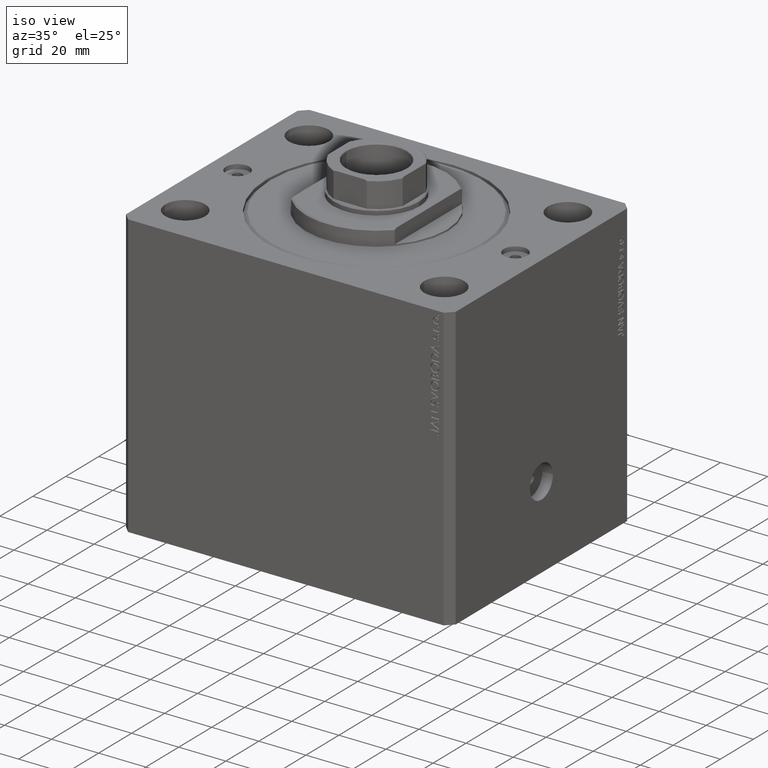
[diagram: clean part render]
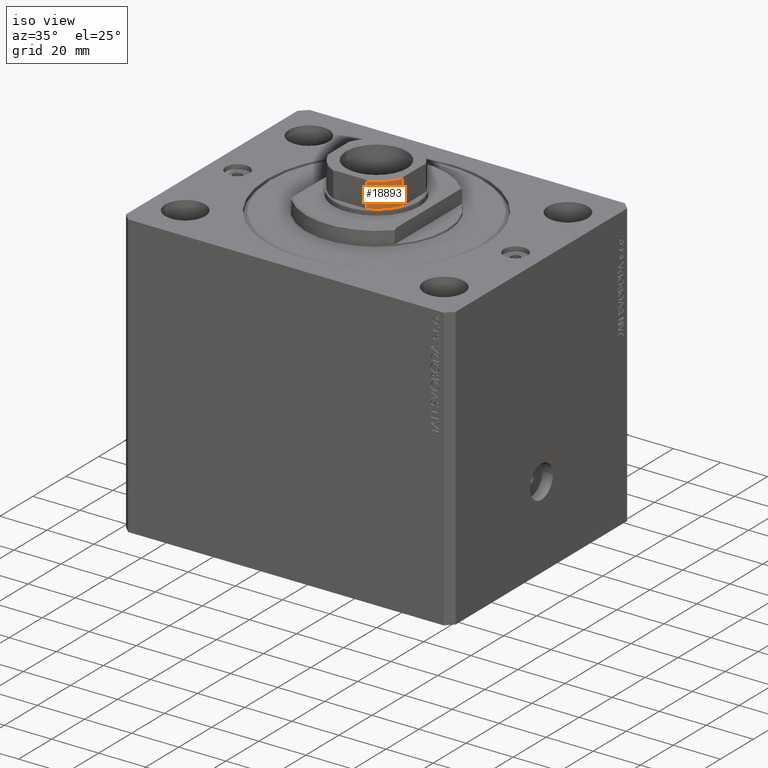
[diagram: same view with one face highlighted and labeled with its STEP entity id]
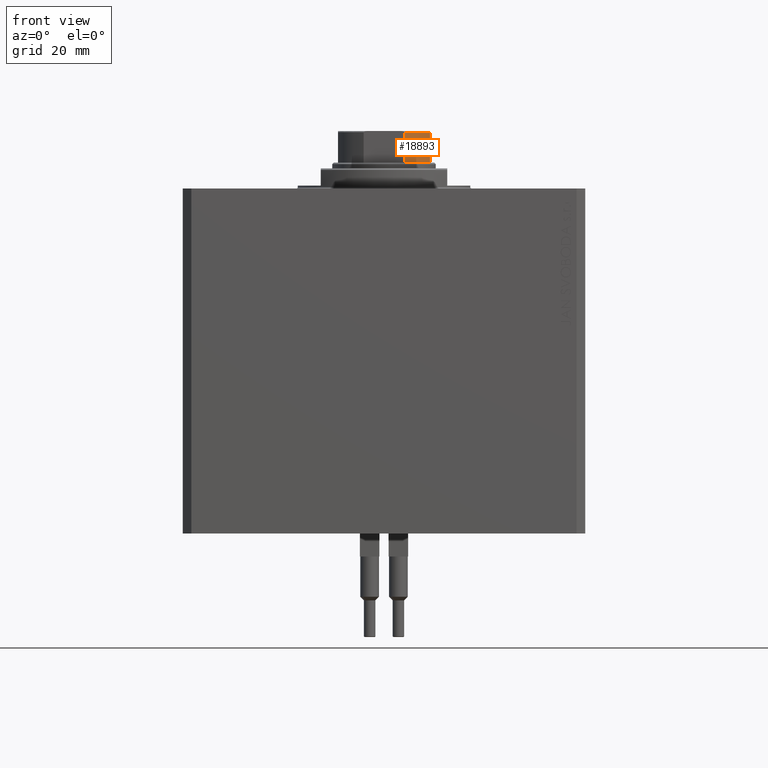
[diagram: same view with one face highlighted and labeled with its STEP entity id]
A machine part, iso view. The second image highlights one B-rep face of the part: STEP entity #18893.
A second angle (front view) of the same face is appended — the face is thin or edge-on in the first view.
In plain terms, the highlighted cylindrical surface (partial cylindrical patch) has radius 17.5 mm, axis along (0, 0, 1).
Its self-contained STEP definition (entity closure, byte-faithful):
#415 = CARTESIAN_POINT ( 'NONE',  ( 7.088723439378916247, -16.00000000000000000, -0.001000000000001000089 ) ) ;
#722 = FACE_OUTER_BOUND ( 'NONE', #20437, .T. ) ;
#832 = CIRCLE ( 'NONE', #19453, 17.50000000000001421 ) ;
#1024 = CIRCLE ( 'NONE', #18874, 17.50000000000000000 ) ;
#1625 = EDGE_CURVE ( 'NONE', #5540, #33723, #9014, .T. ) ;
#5148 = CARTESIAN_POINT ( 'NONE',  ( 0.000000000000000000, 0.000000000000000000, 114.5000000000000000 ) ) ;
#5365 = CARTESIAN_POINT ( 'NONE',  ( 15.99999999999999645, -7.088723439378925129, -0.001000000000001000089 ) ) ;
#5540 = VERTEX_POINT ( 'NONE', #37149 ) ;
#7701 = DIRECTION ( 'NONE',  ( -0.000000000000000000, -0.000000000000000000, 1.000000000000000000 ) ) ;
#9014 = LINE ( 'NONE', #5365, #25432 ) ;
#10748 = DIRECTION ( 'NONE',  ( 1.000000000000000000, 0.000000000000000000, 0.000000000000000000 ) ) ;
#11587 = ORIENTED_EDGE ( 'NONE', *, *, #37358, .F. ) ;
#11929 = DIRECTION ( 'NONE',  ( -0.000000000000000000, -0.000000000000000000, 1.000000000000000000 ) ) ;
#12143 = DIRECTION ( 'NONE',  ( 1.000000000000000000, 0.000000000000000000, 0.000000000000000000 ) ) ;
#14509 = LINE ( 'NONE', #415, #44164 ) ;
#15093 = VERTEX_POINT ( 'NONE', #35448 ) ;
#18874 = AXIS2_PLACEMENT_3D ( 'NONE', #5148, #30642, #19946 ) ;
#18893 = ADVANCED_FACE ( 'NONE', ( #722 ), #30597, .T. ) ;
#19453 = AXIS2_PLACEMENT_3D ( 'NONE', #37843, #30323, #10748 ) ;
#19563 = CARTESIAN_POINT ( 'NONE',  ( 15.99999999999999645, -7.088723439378925129, 114.5000000000000000 ) ) ;
#19946 = DIRECTION ( 'NONE',  ( 1.000000000000000000, 0.000000000000000000, 0.000000000000000000 ) ) ;
#20437 = EDGE_LOOP ( 'NONE', ( #21930, #25024, #11587, #43171 ) ) ;
#21930 = ORIENTED_EDGE ( 'NONE', *, *, #1625, .T. ) ;
#22440 = EDGE_CURVE ( 'NONE', #33723, #15093, #1024, .T. ) ;
#23305 = CARTESIAN_POINT ( 'NONE',  ( 0.000000000000000000, 0.000000000000000000, -0.001000000000001000089 ) ) ;
#25024 = ORIENTED_EDGE ( 'NONE', *, *, #22440, .T. ) ;
#25432 = VECTOR ( 'NONE', #11929, 1000.000000000000000 ) ;
#28073 = AXIS2_PLACEMENT_3D ( 'NONE', #23305, #41030, #12143 ) ;
#30323 = DIRECTION ( 'NONE',  ( 0.000000000000000000, 0.000000000000000000, 1.000000000000000000 ) ) ;
#30597 = CYLINDRICAL_SURFACE ( 'NONE', #28073, 17.50000000000000000 ) ;
#30642 = DIRECTION ( 'NONE',  ( 0.000000000000000000, -0.000000000000000000, -1.000000000000000000 ) ) ;
#33681 = CARTESIAN_POINT ( 'NONE',  ( 7.088723439378916247, -16.00000000000000000, 104.0000000000000284 ) ) ;
#33723 = VERTEX_POINT ( 'NONE', #19563 ) ;
#35448 = CARTESIAN_POINT ( 'NONE',  ( 7.088723439378916247, -16.00000000000000000, 114.5000000000000000 ) ) ;
#37149 = CARTESIAN_POINT ( 'NONE',  ( 15.99999999999999645, -7.088723439378925129, 104.0000000000000284 ) ) ;
#37358 = EDGE_CURVE ( 'NONE', #37457, #15093, #14509, .T. ) ;
#37457 = VERTEX_POINT ( 'NONE', #33681 ) ;
#37843 = CARTESIAN_POINT ( 'NONE',  ( 0.000000000000000000, 0.000000000000000000, 104.0000000000000142 ) ) ;
#40962 = EDGE_CURVE ( 'NONE', #37457, #5540, #832, .T. ) ;
#41030 = DIRECTION ( 'NONE',  ( -0.000000000000000000, -0.000000000000000000, 1.000000000000000000 ) ) ;
#43171 = ORIENTED_EDGE ( 'NONE', *, *, #40962, .T. ) ;
#44164 = VECTOR ( 'NONE', #7701, 1000.000000000000000 ) ;